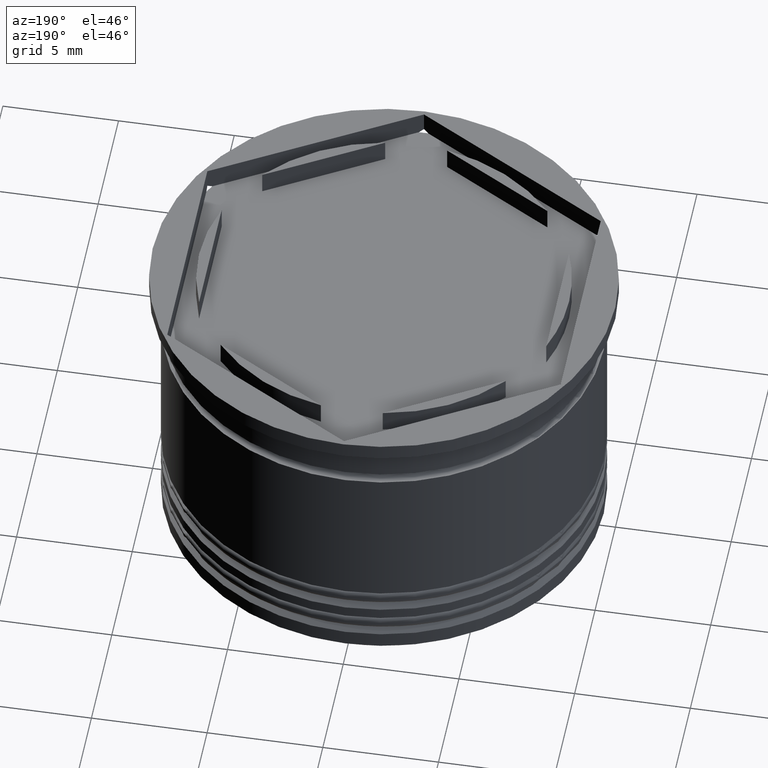
[diagram: clean part render]
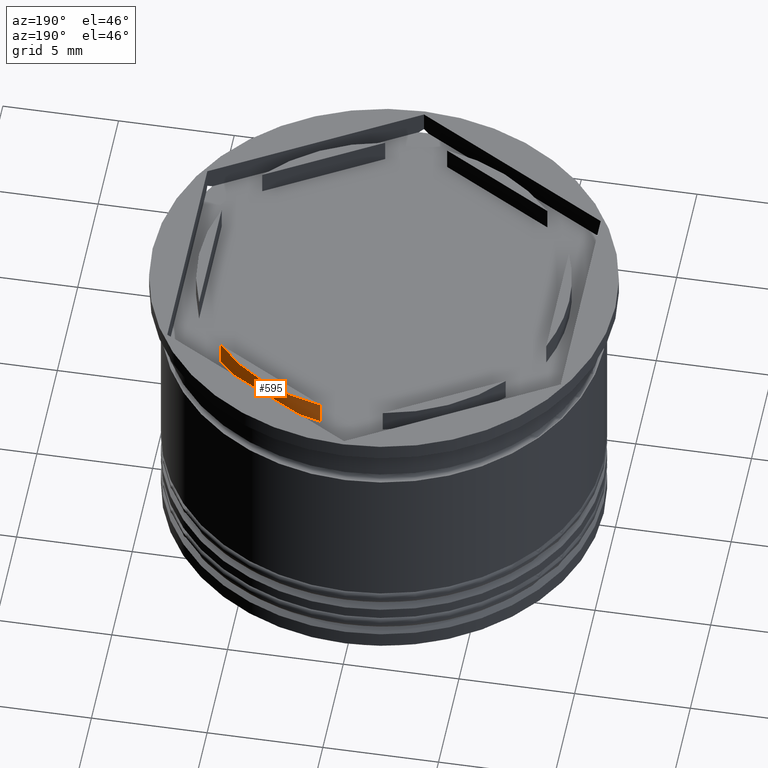
[diagram: same view with one face highlighted and labeled with its STEP entity id]
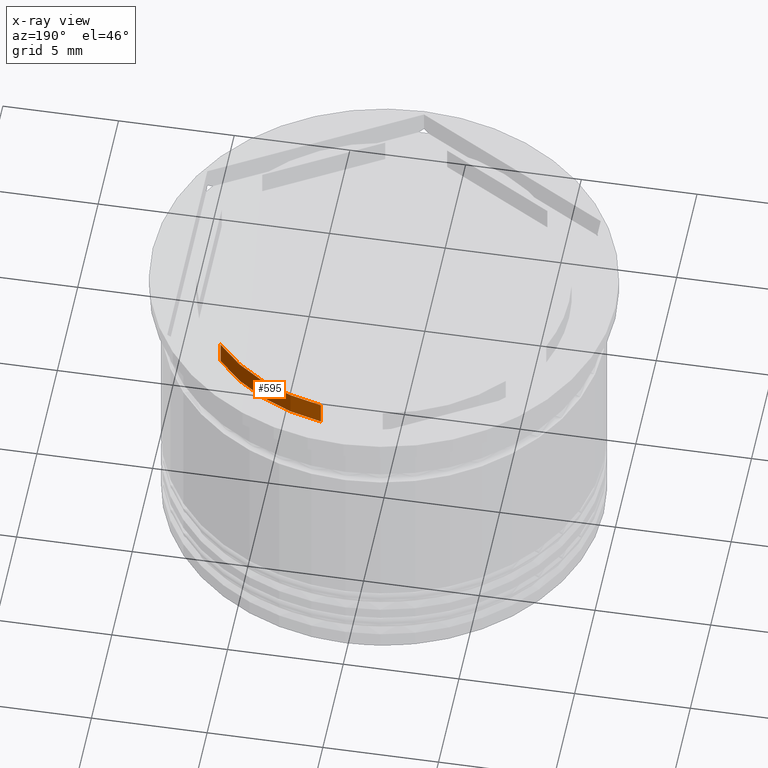
[diagram: x-ray of the same camera — body ghosted, the highlighted face saturated]
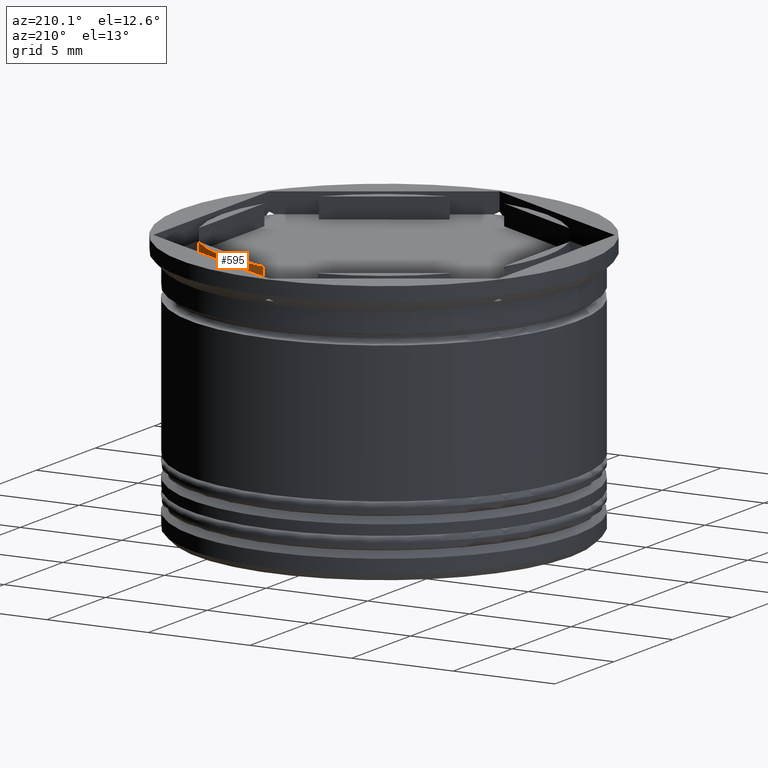
[diagram: same view with one face highlighted and labeled with its STEP entity id]
A machine part, auxiliary view. The second image highlights one B-rep face of the part: STEP entity #595.
The next image is the same camera in x-ray: the body ghosted, the highlighted face saturated — about 0% of this face is hidden behind the body in this view.
A second angle (auxiliary view) of the same face is appended — the face is thin or edge-on in the first view.
In plain terms, the highlighted cylindrical surface (partial cylindrical patch) has radius 8 mm, axis along (-0, -0, -1).
Its self-contained STEP definition (entity closure, byte-faithful):
#7 = CARTESIAN_POINT ( 'NONE',  ( 6.160912690248236068, 5.103249437675787092, -1.000000000000000888 ) ) ;
#80 = DIRECTION ( 'NONE',  ( -0.000000000000000000, -0.000000000000000000, -1.000000000000000000 ) ) ;
#173 = CARTESIAN_POINT ( 'NONE',  ( 0.000000000000000000, 0.000000000000000000, 0.000000000000000000 ) ) ;
#304 = EDGE_CURVE ( 'NONE', #1659, #924, #1808, .T. ) ;
#350 = VERTEX_POINT ( 'NONE', #7 ) ;
#374 = ORIENTED_EDGE ( 'NONE', *, *, #427, .T. ) ;
#383 = CYLINDRICAL_SURFACE ( 'NONE', #1701, 8.000000000000000000 ) ;
#390 = DIRECTION ( 'NONE',  ( 1.000000000000000000, 0.000000000000000000, 0.000000000000000000 ) ) ;
#392 = CARTESIAN_POINT ( 'NONE',  ( 6.160912690248236068, 5.103249437675787092, 0.000000000000000000 ) ) ;
#427 = EDGE_CURVE ( 'NONE', #2171, #924, #966, .T. ) ;
#449 = EDGE_LOOP ( 'NONE', ( #514, #1565, #1987, #374 ) ) ;
#514 = ORIENTED_EDGE ( 'NONE', *, *, #304, .F. ) ;
#550 = AXIS2_PLACEMENT_3D ( 'NONE', #1234, #898, #390 ) ;
#558 = CARTESIAN_POINT ( 'NONE',  ( 6.160912690248236068, 5.103249437675787092, 22.62741699796951522 ) ) ;
#595 = ADVANCED_FACE ( 'NONE', ( #1223 ), #383, .T. ) ;
#652 = CIRCLE ( 'NONE', #550, 8.000000000000000000 ) ;
#695 = DIRECTION ( 'NONE',  ( 1.000000000000000000, 0.000000000000000000, 0.000000000000000000 ) ) ;
#697 = LINE ( 'NONE', #558, #1640 ) ;
#723 = DIRECTION ( 'NONE',  ( -0.000000000000000000, -0.000000000000000000, -1.000000000000000000 ) ) ;
#898 = DIRECTION ( 'NONE',  ( 0.000000000000000000, 0.000000000000000000, 1.000000000000000000 ) ) ;
#924 = VERTEX_POINT ( 'NONE', #1246 ) ;
#966 = LINE ( 'NONE', #1258, #1052 ) ;
#979 = EDGE_CURVE ( 'NONE', #350, #2171, #652, .T. ) ;
#1009 = DIRECTION ( 'NONE',  ( -0.000000000000000000, -0.000000000000000000, 1.000000000000000000 ) ) ;
#1052 = VECTOR ( 'NONE', #1143, 1000.000000000000000 ) ;
#1143 = DIRECTION ( 'NONE',  ( 0.000000000000000000, 0.000000000000000000, 1.000000000000000000 ) ) ;
#1159 = CARTESIAN_POINT ( 'NONE',  ( 1.339087309751763044, 7.887131619090794743, -1.000000000000000888 ) ) ;
#1223 = FACE_OUTER_BOUND ( 'NONE', #449, .T. ) ;
#1234 = CARTESIAN_POINT ( 'NONE',  ( 0.000000000000000000, 0.000000000000000000, -1.000000000000000000 ) ) ;
#1246 = CARTESIAN_POINT ( 'NONE',  ( 1.339087309751762600, 7.887131619090794743, 0.000000000000000000 ) ) ;
#1258 = CARTESIAN_POINT ( 'NONE',  ( 1.339087309751763044, 7.887131619090794743, 22.62741699796951522 ) ) ;
#1366 = AXIS2_PLACEMENT_3D ( 'NONE', #173, #1009, #695 ) ;
#1558 = DIRECTION ( 'NONE',  ( -1.000000000000000000, 0.000000000000000000, 0.000000000000000000 ) ) ;
#1565 = ORIENTED_EDGE ( 'NONE', *, *, #1915, .T. ) ;
#1640 = VECTOR ( 'NONE', #723, 1000.000000000000000 ) ;
#1659 = VERTEX_POINT ( 'NONE', #392 ) ;
#1701 = AXIS2_PLACEMENT_3D ( 'NONE', #1893, #80, #1558 ) ;
#1808 = CIRCLE ( 'NONE', #1366, 8.000000000000000000 ) ;
#1893 = CARTESIAN_POINT ( 'NONE',  ( 0.000000000000000000, 0.000000000000000000, 22.62741699796951522 ) ) ;
#1915 = EDGE_CURVE ( 'NONE', #1659, #350, #697, .T. ) ;
#1987 = ORIENTED_EDGE ( 'NONE', *, *, #979, .T. ) ;
#2171 = VERTEX_POINT ( 'NONE', #1159 ) ;